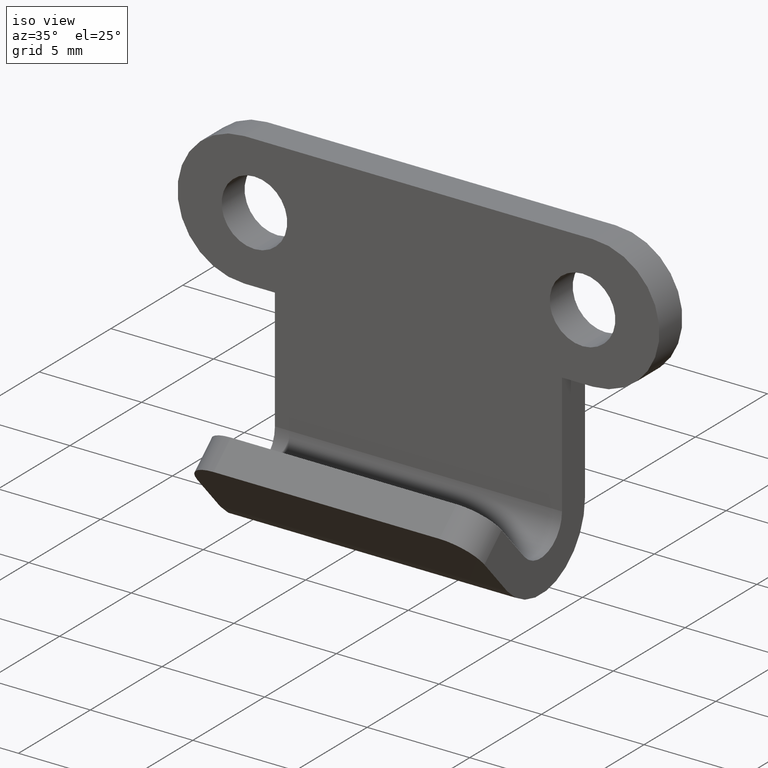
[diagram: clean part render]
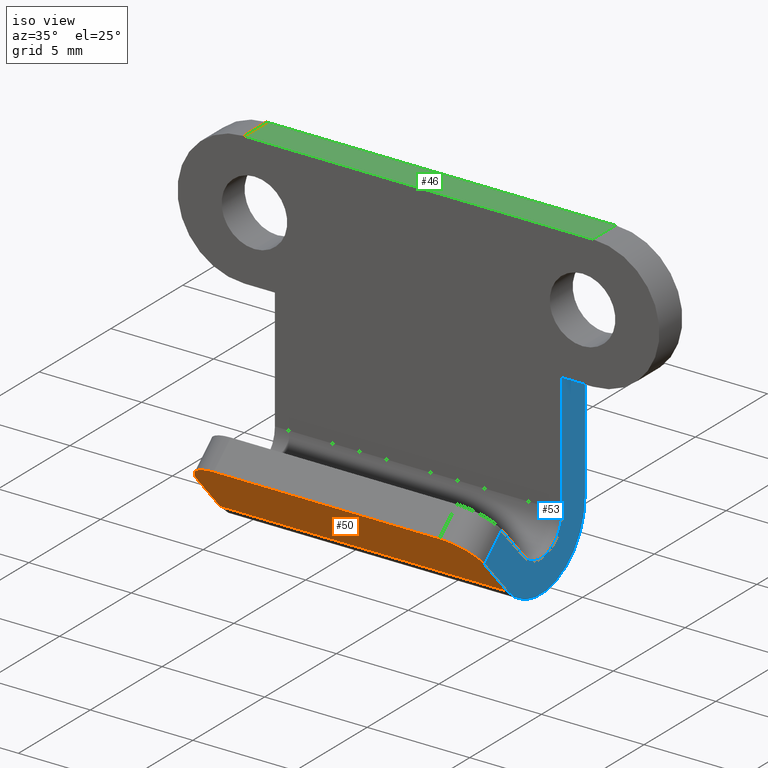
[diagram: same view with three faces highlighted in distinct colors, each labeled with its STEP entity id]
A machine part, iso view with three faces highlighted in distinct colors.
Their STEP definitions:

[orange] entity #50 — the highlighted planar face has unit normal (0, -0.746, -0.666).
#50=ADVANCED_FACE('',(#163),#162,.T.);
#162=PLANE('',#319);
#163=FACE_OUTER_BOUND('',#320,.T.);
#316=CARTESIAN_POINT('',(-1.64000000000E+01,-3.55377065003E+00,-1.15043659101E+01));
#317=DIRECTION('',(0.00000000000E+00,-7.45988575320E-01,-6.65958741584E-01));
#318=DIRECTION('',(1.00000000000E+00,0.00000000000E+00,0.00000000000E+00));
#319=AXIS2_PLACEMENT_3D('',#316,#317,#318);
#320=EDGE_LOOP('',(#422,#423,#424,#425,#426,#427));
#422=ORIENTED_EDGE('',*,*,#514,.T.);
#423=ORIENTED_EDGE('',*,*,#491,.T.);
#424=ORIENTED_EDGE('',*,*,#513,.F.);
#425=ORIENTED_EDGE('',*,*,#476,.F.);
#426=ORIENTED_EDGE('',*,*,#486,.F.);
#427=ORIENTED_EDGE('',*,*,#515,.T.);
#476=EDGE_CURVE('',#530,#531,#532,.T.);
#486=EDGE_CURVE('',#593,#530,#600,.T.);
#491=EDGE_CURVE('',#634,#635,#636,.T.);
#513=EDGE_CURVE('',#531,#635,#781,.T.);
#514=EDGE_CURVE('',#787,#634,#788,.T.);
#515=EDGE_CURVE('',#593,#787,#794,.T.);
#530=VERTEX_POINT('',#890);
#531=VERTEX_POINT('',#891);
#532=CIRCLE('',#895,1.50000000000E+00);
#593=VERTEX_POINT('',#929);
#600=LINE('',#934,#935);
#634=VERTEX_POINT('',#953);
#635=VERTEX_POINT('',#954);
#636=CIRCLE('',#958,1.50000000000E+00);
#781=LINE('',#1044,#1045);
#787=VERTEX_POINT('',#1047);
#788=LINE('',#1048,#1049);
#794=LINE('',#1051,#1052);
#890=CARTESIAN_POINT('',(-1.50000000000E+01,-5.40156580574E+00,-9.43451684951E+00));
#891=CARTESIAN_POINT('',(-1.35000000000E+01,-6.40050391811E+00,-8.31553398654E+00));
#892=CARTESIAN_POINT('',(-1.35000000000E+01,-5.40156580574E+00,-9.43451684951E+00));
#893=DIRECTION('',(8.27481921717E-16,7.45988575320E-01,6.65958741584E-01));
#894=DIRECTION('',(1.00000000000E+00,2.11386463889E-13,-2.38031816480E-13));
#895=AXIS2_PLACEMENT_3D('',#892,#893,#894);
#929=CARTESIAN_POINT('',(-1.50000000000E+01,-3.81256458349E+00,-1.12144720989E+01));
#934=CARTESIAN_POINT('',(-1.50000000000E+01,-3.81256458349E+00,-1.12144720989E+01));
#935=VECTOR('',#936,2.38603553497E+00);
#936=DIRECTION('',(2.93325302354E-13,-6.65958741584E-01,7.45988575320E-01));
#953=CARTESIAN_POINT('',(-9.99999999996E-01,-5.40156580574E+00,-9.43451684951E+00));
#954=CARTESIAN_POINT('',(-2.50000000000E+00,-6.40050391811E+00,-8.31553398654E+00));
#955=CARTESIAN_POINT('',(-2.50000000000E+00,-5.40156580574E+00,-9.43451684951E+00));
#956=DIRECTION('',(1.55521813159E-15,-7.45988575320E-01,-6.65958741584E-01));
#957=DIRECTION('',(-1.00000000000E+00,1.92438657602E-13,-2.17899772300E-13));
#958=AXIS2_PLACEMENT_3D('',#955,#956,#957);
#1044=CARTESIAN_POINT('',(-1.35000000000E+01,-6.40050391811E+00,-8.31553398654E+00));
#1045=VECTOR('',#1046,1.10000000000E+01);
#1046=DIRECTION('',(1.00000000000E+00,0.00000000000E+00,0.00000000000E+00));
#1047=CARTESIAN_POINT('',(-9.99999999996E-01,-3.81256458349E+00,-1.12144720989E+01));
#1048=CARTESIAN_POINT('',(-9.99999999996E-01,-3.81256458349E+00,-1.12144720989E+01));
#1049=VECTOR('',#1050,2.38603553497E+00);
#1050=DIRECTION('',(-2.91696751341E-13,-6.65958741584E-01,7.45988575320E-01));
#1051=CARTESIAN_POINT('',(-1.50000000000E+01,-3.81256458349E+00,-1.12144720989E+01));
#1052=VECTOR('',#1053,1.40000000000E+01);
#1053=DIRECTION('',(1.00000000000E+00,0.00000000000E+00,0.00000000000E+00));

[blue] entity #53 — the highlighted planar face has unit normal (1, -0, 0).
#53=ADVANCED_FACE('',(#195),#194,.T.);
#194=PLANE('',#336);
#195=FACE_OUTER_BOUND('',#337,.T.);
#333=CARTESIAN_POINT('',(-9.99999999995E-01,-6.10172238631E+00,-1.37632308630E+01));
#334=DIRECTION('',(1.00000000000E+00,-0.00000000000E+00,3.91235987796E-13));
#335=DIRECTION('',(0.00000000000E+00,1.00000000000E+00,0.00000000000E+00));
#336=AXIS2_PLACEMENT_3D('',#333,#334,#335);
#337=EDGE_LOOP('',(#444,#445,#446,#447,#448,#449,#450,#451));
#444=ORIENTED_EDGE('',*,*,#512,.F.);
#445=ORIENTED_EDGE('',*,*,#492,.T.);
#446=ORIENTED_EDGE('',*,*,#514,.F.);
#447=ORIENTED_EDGE('',*,*,#524,.T.);
#448=ORIENTED_EDGE('',*,*,#516,.F.);
#449=ORIENTED_EDGE('',*,*,#487,.T.);
#450=ORIENTED_EDGE('',*,*,#502,.F.);
#451=ORIENTED_EDGE('',*,*,#510,.F.);
#487=EDGE_CURVE('',#606,#607,#608,.T.);
#492=EDGE_CURVE('',#642,#634,#643,.T.);
#502=EDGE_CURVE('',#702,#607,#709,.T.);
#510=EDGE_CURVE('',#756,#702,#763,.T.);
#512=EDGE_CURVE('',#642,#756,#775,.T.);
#514=EDGE_CURVE('',#787,#634,#788,.T.);
#516=EDGE_CURVE('',#606,#800,#801,.T.);
#524=EDGE_CURVE('',#787,#800,#854,.T.);
#606=VERTEX_POINT('',#937);
#607=VERTEX_POINT('',#938);
#608=LINE('',#939,#940);
#634=VERTEX_POINT('',#953);
#642=VERTEX_POINT('',#959);
#643=LINE('',#960,#961);
#702=VERTEX_POINT('',#996);
#709=LINE('',#1000,#1001);
#756=VERTEX_POINT('',#1030);
#763=CIRCLE('',#1037,1.50000000000E+00);
#775=LINE('',#1041,#1042);
#787=VERTEX_POINT('',#1047);
#788=LINE('',#1048,#1049);
#800=VERTEX_POINT('',#1054);
#801=LINE('',#1055,#1056);
#854=CIRCLE('',#1092,3.10000000000E+00);
#937=CARTESIAN_POINT('',(-9.99999999999E-01,1.60000000000E+00,-3.25000000000E+00));
#938=CARTESIAN_POINT('',(-9.99999999999E-01,0.00000000000E+00,-3.25000000000E+00));
#939=CARTESIAN_POINT('',(-9.99999999999E-01,1.60000000001E+00,-3.25000000000E+00));
#940=VECTOR('',#941,1.60000000001E+00);
#941=DIRECTION('',(0.00000000000E+00,-1.00000000000E+00,0.00000000000E+00));
#953=CARTESIAN_POINT('',(-9.99999999996E-01,-5.40156580574E+00,-9.43451684951E+00));
#959=CARTESIAN_POINT('',(-9.99999999997E-01,-4.20798408523E+00,-8.36898286298E+00));
#960=CARTESIAN_POINT('',(-9.99999999997E-01,-4.20798408522E+00,-8.36898286302E+00));
#961=VECTOR('',#962,1.59999999998E+00);
#962=DIRECTION('',(2.60000354583E-13,-7.45988575320E-01,-6.65958741584E-01));
#996=CARTESIAN_POINT('',(-9.99999999996E-01,2.16840434497E-16,-9.15000000000E+00));
#1000=CARTESIAN_POINT('',(-9.99999999996E-01,0.00000000000E+00,-9.15000000000E+00));
#1001=VECTOR('',#1002,5.90000000000E+00);
#1002=DIRECTION('',(-3.91193668795E-13,0.00000000000E+00,1.00000000000E+00));
#1030=CARTESIAN_POINT('',(-9.99999999996E-01,-2.61898286298E+00,-1.01489381124E+01));
#1034=CARTESIAN_POINT('',(-9.99999999996E-01,-1.50000000000E+00,-9.15000000000E+00));
#1035=DIRECTION('',(1.00000000000E+00,2.31788381774E-16,3.90843146639E-13));
#1036=DIRECTION('',(-2.60458321577E-13,7.45988575320E-01,6.65958741584E-01));
#1037=AXIS2_PLACEMENT_3D('',#1034,#1035,#1036);
#1041=CARTESIAN_POINT('',(-9.99999999997E-01,-4.20798408523E+00,-8.36898286298E+00));
#1042=VECTOR('',#1043,2.38603553497E+00);
#1043=DIRECTION('',(2.92115521602E-13,6.65958741584E-01,-7.45988575320E-01));
#1047=CARTESIAN_POINT('',(-9.99999999996E-01,-3.81256458349E+00,-1.12144720989E+01));
#1048=CARTESIAN_POINT('',(-9.99999999996E-01,-3.81256458349E+00,-1.12144720989E+01));
#1049=VECTOR('',#1050,2.38603553497E+00);
#1050=DIRECTION('',(-2.91696751341E-13,-6.65958741584E-01,7.45988575320E-01));
#1054=CARTESIAN_POINT('',(-9.99999999996E-01,1.60000000000E+00,-9.15000000000E+00));
#1055=CARTESIAN_POINT('',(-9.99999999999E-01,1.60000000000E+00,-3.25000000000E+00));
#1056=VECTOR('',#1057,5.90000000000E+00);
#1057=DIRECTION('',(3.91174851456E-13,0.00000000000E+00,-1.00000000000E+00));
#1089=CARTESIAN_POINT('',(-9.99999999996E-01,-1.50000000000E+00,-9.15000000000E+00));
#1090=DIRECTION('',(1.00000000000E+00,-3.24496505228E-16,3.91434015049E-13));
#1091=DIRECTION('',(-2.60436833389E-13,7.45988575320E-01,6.65958741584E-01));
#1092=AXIS2_PLACEMENT_3D('',#1089,#1090,#1091);

[green] entity #46 — the highlighted planar face has unit normal (0, -0, 1).
#46=ADVANCED_FACE('',(#123),#122,.T.);
#122=PLANE('',#299);
#123=FACE_OUTER_BOUND('',#300,.T.);
#296=CARTESIAN_POINT('',(2.20000000005E+00,-1.60000000000E-01,3.25000000000E+00));
#297=DIRECTION('',(0.00000000000E+00,-0.00000000000E+00,1.00000000000E+00));
#298=DIRECTION('',(0.00000000000E+00,1.00000000000E+00,0.00000000000E+00));
#299=AXIS2_PLACEMENT_3D('',#296,#297,#298);
#300=EDGE_LOOP('',(#404,#405,#406,#407));
#404=ORIENTED_EDGE('',*,*,#497,.F.);
#405=ORIENTED_EDGE('',*,*,#507,.F.);
#406=ORIENTED_EDGE('',*,*,#508,.T.);
#407=ORIENTED_EDGE('',*,*,#498,.T.);
#497=EDGE_CURVE('',#669,#662,#676,.T.);
#498=EDGE_CURVE('',#682,#662,#683,.T.);
#507=EDGE_CURVE('',#743,#669,#744,.T.);
#508=EDGE_CURVE('',#743,#682,#750,.T.);
#662=VERTEX_POINT('',#971);
#669=VERTEX_POINT('',#976);
#676=LINE('',#981,#982);
#682=VERTEX_POINT('',#984);
#683=LINE('',#985,#986);
#743=VERTEX_POINT('',#1023);
#744=LINE('',#1024,#1025);
#750=LINE('',#1027,#1028);
#971=CARTESIAN_POINT('',(5.00000000043E-01,0.00000000000E+00,3.25000000000E+00));
#976=CARTESIAN_POINT('',(5.00000000043E-01,1.60000000000E+00,3.25000000000E+00));
#981=CARTESIAN_POINT('',(5.00000000043E-01,1.60000000000E+00,3.25000000000E+00));
#982=VECTOR('',#983,1.60000000000E+00);
#983=DIRECTION('',(0.00000000000E+00,-1.00000000000E+00,0.00000000000E+00));
#984=CARTESIAN_POINT('',(-1.65000000000E+01,0.00000000000E+00,3.25000000000E+00));
#985=CARTESIAN_POINT('',(-1.65000000000E+01,0.00000000000E+00,3.25000000000E+00));
#986=VECTOR('',#987,1.70000000001E+01);
#987=DIRECTION('',(1.00000000000E+00,0.00000000000E+00,0.00000000000E+00));
#1023=CARTESIAN_POINT('',(-1.65000000000E+01,1.60000000000E+00,3.25000000000E+00));
#1024=CARTESIAN_POINT('',(-1.65000000000E+01,1.60000000000E+00,3.25000000000E+00));
#1025=VECTOR('',#1026,1.70000000001E+01);
#1026=DIRECTION('',(1.00000000000E+00,0.00000000000E+00,0.00000000000E+00));
#1027=CARTESIAN_POINT('',(-1.65000000000E+01,1.60000000000E+00,3.25000000000E+00));
#1028=VECTOR('',#1029,1.60000000000E+00);
#1029=DIRECTION('',(0.00000000000E+00,-1.00000000000E+00,0.00000000000E+00));